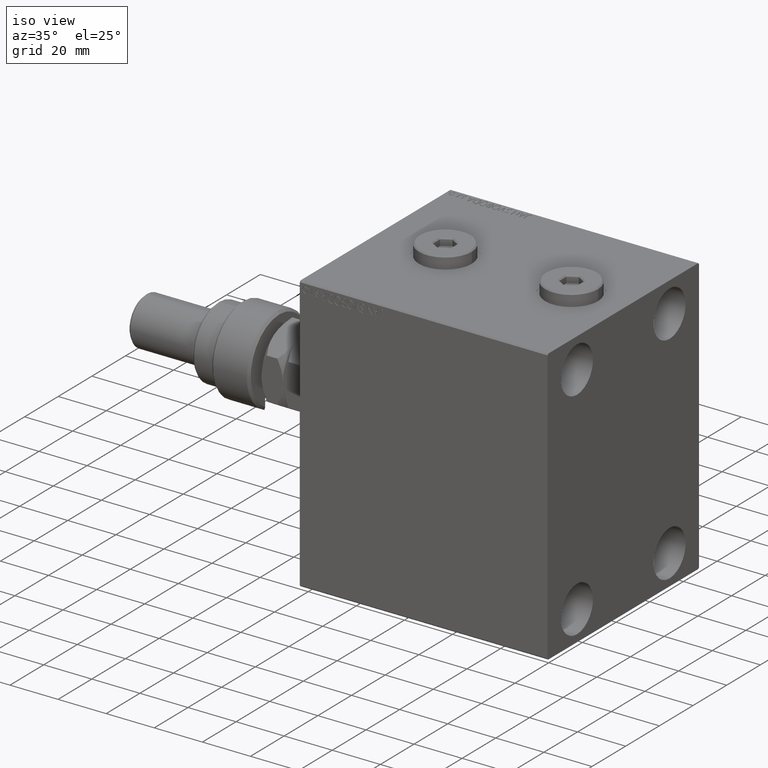
[diagram: clean part render]
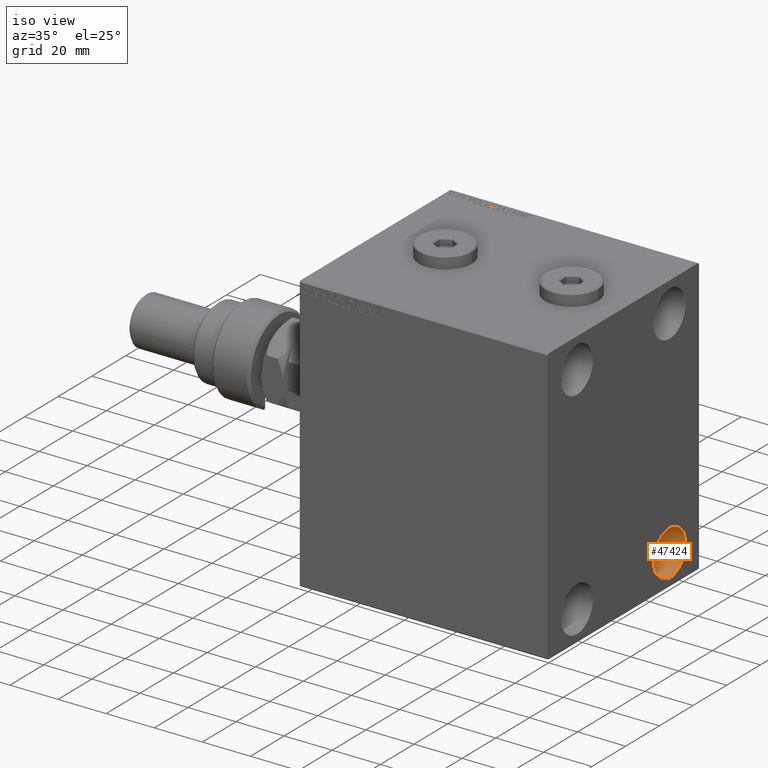
[diagram: same view with one face highlighted and labeled with its STEP entity id]
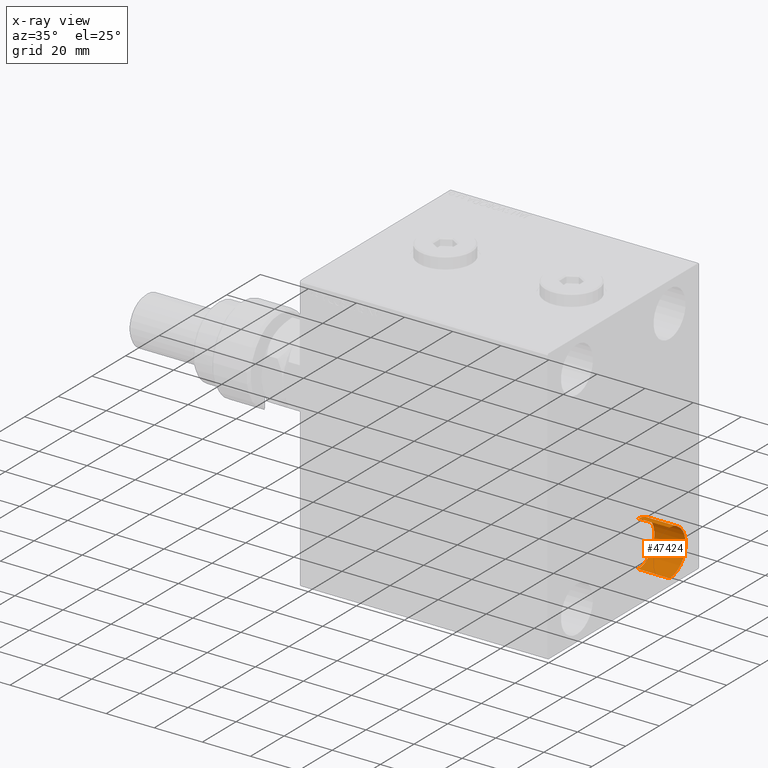
[diagram: x-ray of the same camera — body ghosted, the highlighted face saturated]
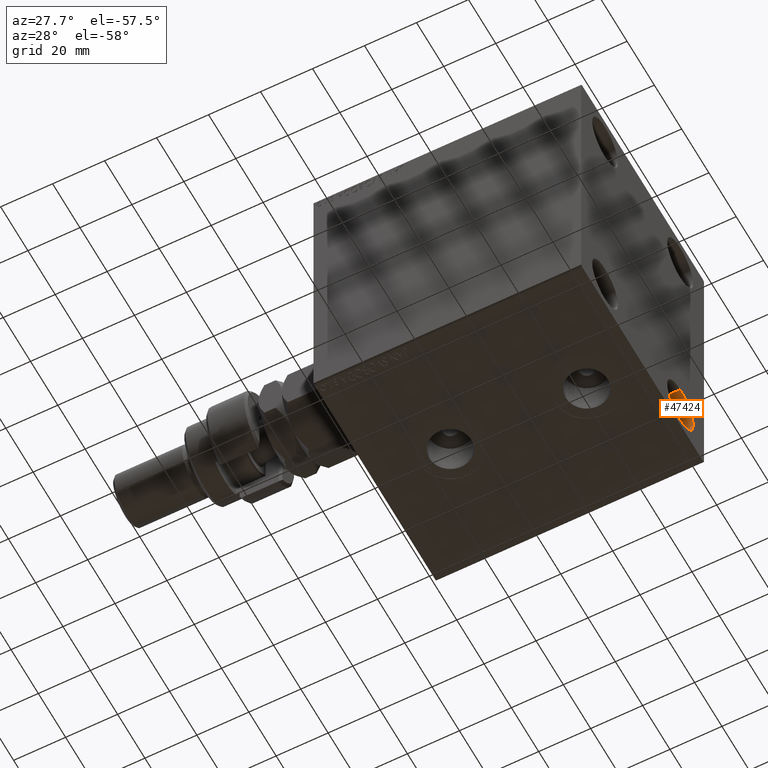
[diagram: same view with one face highlighted and labeled with its STEP entity id]
A machine part, iso view. The second image highlights one B-rep face of the part: STEP entity #47424.
The next image is the same camera in x-ray: the body ghosted, the highlighted face saturated — about 0% of this face is hidden behind the body in this view.
A second angle (auxiliary view) of the same face is appended — the face is thin or edge-on in the first view.
In plain terms, the highlighted cylindrical surface (edge-blend (fillet) strip) has radius 9.5 mm, axis along (1, 0, 0).
Its self-contained STEP definition (entity closure, byte-faithful):
#1386 = AXIS2_PLACEMENT_3D ( 'NONE', #28090, #47023, #24450 ) ;
#2101 = DIRECTION ( 'NONE',  ( 1.000000000000000000, -0.000000000000000000, -0.000000000000000000 ) ) ;
#2573 = CYLINDRICAL_SURFACE ( 'NONE', #23683, 9.500000000000001776 ) ;
#2623 = CARTESIAN_POINT ( 'NONE',  ( 90.00000000000000000, 27.49999999999998934, -44.99999999999998579 ) ) ;
#3625 = CARTESIAN_POINT ( 'NONE',  ( 90.00000000000000000, 27.49999999999998934, -54.49999999999998579 ) ) ;
#3717 = CARTESIAN_POINT ( 'NONE',  ( 90.00000000000000000, 27.49999999999998934, -35.49999999999998579 ) ) ;
#6003 = VERTEX_POINT ( 'NONE', #26750 ) ;
#6032 = DIRECTION ( 'NONE',  ( 0.000000000000000000, 0.000000000000000000, 1.000000000000000000 ) ) ;
#7718 = DIRECTION ( 'NONE',  ( 1.000000000000000000, -0.000000000000000000, -0.000000000000000000 ) ) ;
#8447 = DIRECTION ( 'NONE',  ( 0.000000000000000000, 0.000000000000000000, -1.000000000000000000 ) ) ;
#9839 = VERTEX_POINT ( 'NONE', #24294 ) ;
#9895 = CIRCLE ( 'NONE', #1386, 9.500000000000001776 ) ;
#15568 = ORIENTED_EDGE ( 'NONE', *, *, #46134, .T. ) ;
#18807 = VERTEX_POINT ( 'NONE', #34592 ) ;
#23683 = AXIS2_PLACEMENT_3D ( 'NONE', #28032, #2101, #8447 ) ;
#24294 = CARTESIAN_POINT ( 'NONE',  ( 90.00000000000000000, 27.49999999999998934, -54.49999999999998579 ) ) ;
#24450 = DIRECTION ( 'NONE',  ( 0.000000000000000000, 0.000000000000000000, 1.000000000000000000 ) ) ;
#25617 = EDGE_CURVE ( 'NONE', #18807, #31314, #9895, .T. ) ;
#26255 = LINE ( 'NONE', #3717, #26664 ) ;
#26664 = VECTOR ( 'NONE', #34240, 1000.000000000000000 ) ;
#26750 = CARTESIAN_POINT ( 'NONE',  ( 90.00000000000000000, 27.49999999999998934, -35.49999999999998579 ) ) ;
#27537 = AXIS2_PLACEMENT_3D ( 'NONE', #2623, #35115, #6032 ) ;
#28032 = CARTESIAN_POINT ( 'NONE',  ( 90.00000000000000000, 27.49999999999998934, -44.99999999999998579 ) ) ;
#28090 = CARTESIAN_POINT ( 'NONE',  ( 103.0000000000000000, 27.49999999999998934, -44.99999999999998579 ) ) ;
#30024 = LINE ( 'NONE', #3625, #43117 ) ;
#30066 = ORIENTED_EDGE ( 'NONE', *, *, #39110, .F. ) ;
#31314 = VERTEX_POINT ( 'NONE', #40006 ) ;
#34240 = DIRECTION ( 'NONE',  ( 1.000000000000000000, -0.000000000000000000, -0.000000000000000000 ) ) ;
#34592 = CARTESIAN_POINT ( 'NONE',  ( 103.0000000000000000, 27.49999999999998934, -35.49999999999998579 ) ) ;
#35115 = DIRECTION ( 'NONE',  ( -1.000000000000000000, -0.000000000000000000, -0.000000000000000000 ) ) ;
#37599 = ORIENTED_EDGE ( 'NONE', *, *, #25617, .F. ) ;
#39103 = ORIENTED_EDGE ( 'NONE', *, *, #43999, .T. ) ;
#39110 = EDGE_CURVE ( 'NONE', #6003, #18807, #26255, .T. ) ;
#39768 = EDGE_LOOP ( 'NONE', ( #30066, #15568, #39103, #37599 ) ) ;
#39956 = CIRCLE ( 'NONE', #27537, 9.500000000000001776 ) ;
#40006 = CARTESIAN_POINT ( 'NONE',  ( 103.0000000000000000, 27.49999999999998934, -54.49999999999998579 ) ) ;
#43117 = VECTOR ( 'NONE', #7718, 1000.000000000000000 ) ;
#43999 = EDGE_CURVE ( 'NONE', #9839, #31314, #30024, .T. ) ;
#45583 = FACE_OUTER_BOUND ( 'NONE', #39768, .T. ) ;
#46134 = EDGE_CURVE ( 'NONE', #6003, #9839, #39956, .T. ) ;
#47023 = DIRECTION ( 'NONE',  ( -1.000000000000000000, -0.000000000000000000, -0.000000000000000000 ) ) ;
#47424 = ADVANCED_FACE ( 'NONE', ( #45583 ), #2573, .F. ) ;